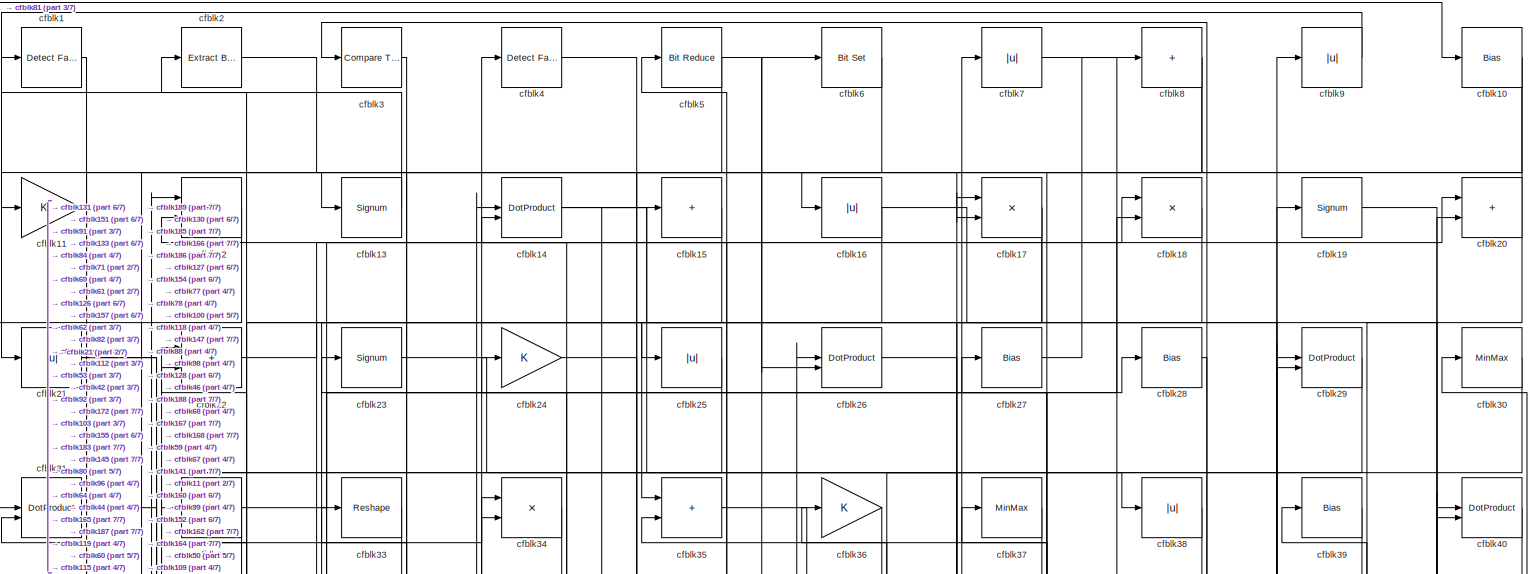
[diagram: root canvas - part 1/7, full width, top band]
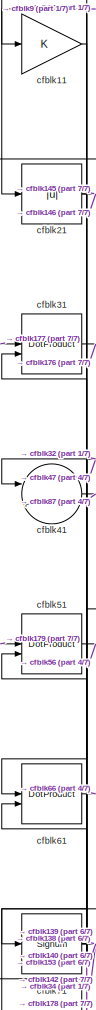
[diagram: root canvas - part 2/7, top left region]
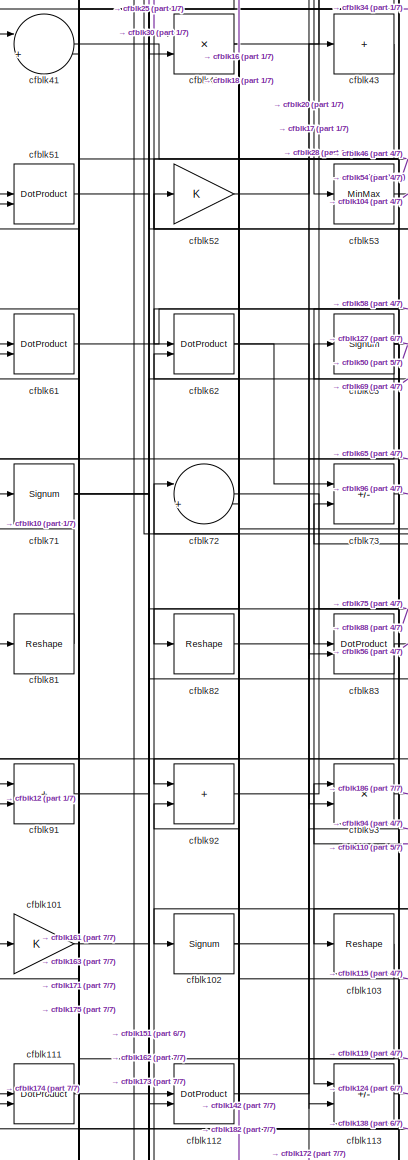
[diagram: root canvas - part 3/7, middle left region]
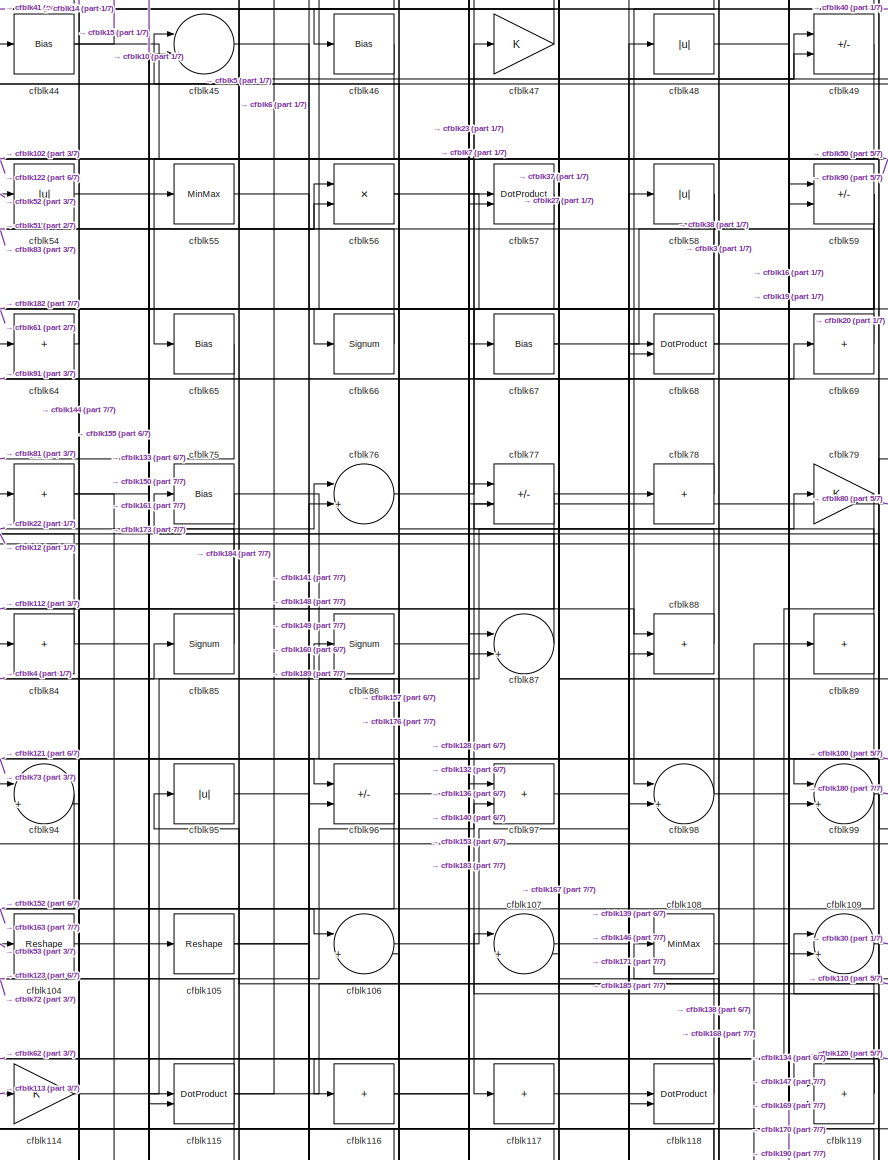
[diagram: root canvas - part 4/7, central region]
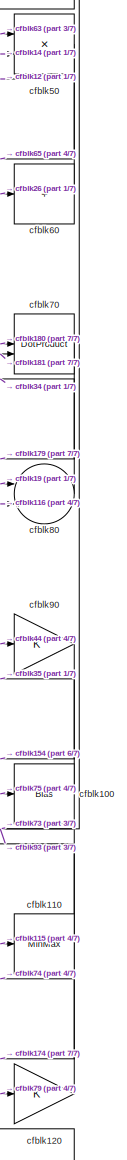
[diagram: root canvas - part 5/7, middle right region]
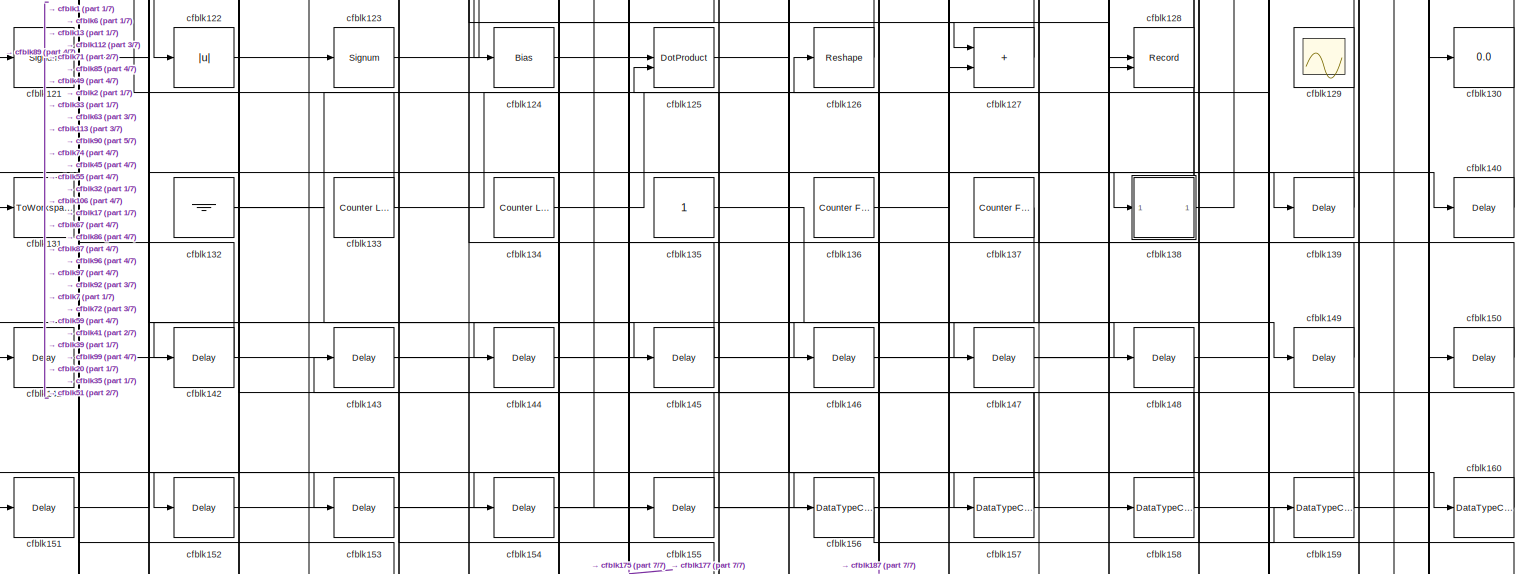
[diagram: root canvas - part 6/7, full width, bottom band]
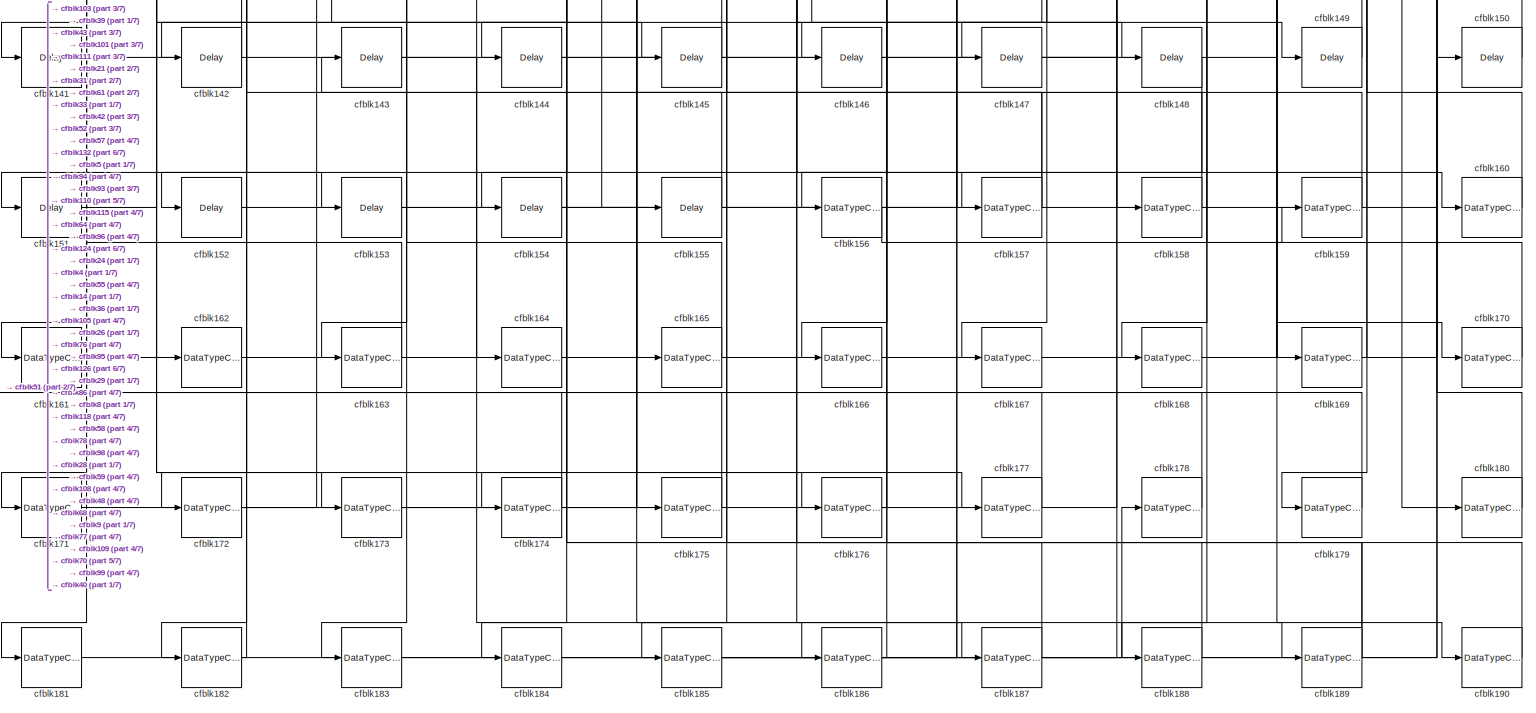
[diagram: root canvas - part 7/7, full width, bottom band]
MODEL slx_25b39e8c205a
KIND model
CONFIG AbsTol = auto
CONFIG EnableMultiTasking = off
CONFIG FixedStep = auto
CONFIG MaxStep = auto
CONFIG MinStep = auto
CONFIG RelTol = 1e-3
CONFIG SampleTimeConstraint = Unconstrained
CONFIG SolverName = VariableStepAuto
CONFIG StartTime = 0.0
CONFIG StopTime = 10.0
BLOCK [Reference] cfblk1  REF=hdlsllib/Logic and Bit
Operations/Detect Fall
Nonpositive
  SourceBlock = hdlsllib/Logic and Bit\nOperations/Detect Fall\nNonpositive
  SourceType = Detect Fall Nonpositive
BLOCK [Bias] cfblk10
  Bias = 0.0
  SaturateOnIntegerOverflow = off
BLOCK [Bias] cfblk100
  Bias = 0.0
  SaturateOnIntegerOverflow = off
BLOCK [Gain] cfblk101
BLOCK [Signum] cfblk102
BLOCK [Reshape] cfblk103
BLOCK [Reshape] cfblk104
BLOCK [Reshape] cfblk105
BLOCK [Sum] cfblk106
  Inputs = |++
BLOCK [Sum] cfblk107
  Inputs = |++
BLOCK [MinMax] cfblk108
BLOCK [Sum] cfblk109
  Inputs = |++
BLOCK [Gain] cfblk11
BLOCK [MinMax] cfblk110
BLOCK [DotProduct] cfblk111
  OutDataTypeStr = Inherit: Inherit via internal rule
BLOCK [DotProduct] cfblk112
  OutDataTypeStr = Inherit: Inherit via internal rule
BLOCK [Sum] cfblk113
  IconShape = rectangular
  Inputs = +-
BLOCK [Gain] cfblk114
BLOCK [DotProduct] cfblk115
  OutDataTypeStr = Inherit: Inherit via internal rule
BLOCK [Sum] cfblk116
  IconShape = rectangular
  Inputs = +
BLOCK [Sum] cfblk117
  IconShape = rectangular
  Inputs = +
BLOCK [DotProduct] cfblk118
  OutDataTypeStr = Inherit: Inherit via internal rule
BLOCK [Sum] cfblk119
  IconShape = rectangular
BLOCK [Sum] cfblk12
  IconShape = rectangular
  Inputs = +-
BLOCK [Gain] cfblk120
BLOCK [Signum] cfblk121
BLOCK [Abs] cfblk122
  SaturateOnIntegerOverflow = off
BLOCK [Signum] cfblk123
BLOCK [Bias] cfblk124
  Bias = 0.0
  SaturateOnIntegerOverflow = off
BLOCK [DotProduct] cfblk125
  OutDataTypeStr = Inherit: Inherit via internal rule
BLOCK [Reshape] cfblk126
BLOCK [Sum] cfblk127
  IconShape = rectangular
BLOCK [Record] cfblk128
  CompatibilityTag = XY
  FileSettingsInternal = {"entries":[{"content":{"excelSettings":{"content":{},"type":"Streamout.ExcelSettings"}},"type":"Streamout.FileSettingStorage","uuid":""}],"packageUris":["http:\/\/schema.mathworks.com\/mf0\/streamout_blocks\/R2020a"],"version":"1.0"}
  Layout = [1 1]
  SignalsInternal = {"entries":[{"content":{"signals":[{"content":{"blockPath":[],"dimensions":[1],"domain":"","lineColor":"#a2142f","plots":[1],"port":1,"signalID":6186,"signalName":"XY Graph:1"},"type":"RecordBlkView.Signal","uuid":""},{"content":{"blockPath":[],"dimensions":[1],"domain":"","lineColor":"#139fff","plots":[1],"port":2,"signalID":6189,"signalName":"XY Graph:2"},"type":"RecordBlkView.Signal","uuid":""}...<+146ch>
  VisualizationBindings = {"xyplotplugin":{"info":[{"series":[{"bindingParametersList":[{"parameter":"X-Axis","signalID":6186,"signalName":"XY Graph:1"},{"parameter":"Y-Axis","signalID":6189,"signalName":"XY Graph:2"}],"seriesID":36534}],"subplotID":1}]}}
  st = -1
BLOCK [Scope] cfblk129
  Floating = on
  NumInputPorts = 1
  ScopeSpecificationString = Simulink.scopes.TimeScopeBlockCfg('CurrentConfiguration', extmgr.ConfigurationSet(extmgr.Configuration('Core','General UI',true,'FigureColor',[0.156862745098039 0.156862745098039 0.156862745098039]),extmgr.Configuration('Core','Source UI',true),extmgr.Configuration('Sources','WiredSimulink',true,'DataLoggingVariableName','ScopeData1','DataLoggingSaveFormat','StructureWithTime','DataLoggingLimitDat...<+2713ch>
BLOCK [Signum] cfblk13
BLOCK [Display] cfblk130
  Decimation = 1
BLOCK [ToWorkspace] cfblk131
  MaxDataPoints = inf
  SampleTime = -1
  SaveFormat = Timeseries
  VariableName = simout
BLOCK [Ground] cfblk132
BLOCK [Reference] cfblk133  REF=hdlsllib/Sources/Counter
Limited
  SourceBlock = hdlsllib/Sources/Counter\nLimited
  SourceType = Counter Limited
BLOCK [Reference] cfblk134  REF=hdlsllib/Sources/Counter
Limited
  SourceBlock = hdlsllib/Sources/Counter\nLimited
  SourceType = Counter Limited
BLOCK [Constant] cfblk135
  SampleTime = -1
BLOCK [Reference] cfblk136  REF=hdlsllib/Sources/Counter
Free-Running
  SourceBlock = hdlsllib/Sources/Counter\nFree-Running
  SourceType = Counter Free-Running
BLOCK [Reference] cfblk137  REF=hdlsllib/Sources/Counter
Free-Running
  SourceBlock = hdlsllib/Sources/Counter\nFree-Running
  SourceType = Counter Free-Running
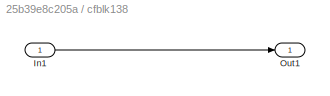
BLOCK [SubSystem] cfblk138
  LibrarySourceBlock = hdlsllib/Ports &\nSubsystems/Subsystem
BLOCK [Inport] cfblk138/In1
BLOCK [Outport] cfblk138/Out1
BLOCK [Delay] cfblk139
  InputPortMap = u0
  SampleTime = 1
BLOCK [DotProduct] cfblk14
  OutDataTypeStr = Inherit: Inherit via internal rule
BLOCK [Delay] cfblk140
  InputPortMap = u0
  SampleTime = 1
BLOCK [Delay] cfblk141
  InputPortMap = u0
  SampleTime = 1
BLOCK [Delay] cfblk142
  InputPortMap = u0
  SampleTime = 1
BLOCK [Delay] cfblk143
  InputPortMap = u0
  SampleTime = 1
BLOCK [Delay] cfblk144
  InputPortMap = u0
  SampleTime = 1
BLOCK [Delay] cfblk145
  InputPortMap = u0
  SampleTime = 1
BLOCK [Delay] cfblk146
  InputPortMap = u0
  SampleTime = 1
BLOCK [Delay] cfblk147
  InputPortMap = u0
  SampleTime = 1
BLOCK [Delay] cfblk148
  InputPortMap = u0
  SampleTime = 1
BLOCK [Delay] cfblk149
  InputPortMap = u0
  SampleTime = 1
BLOCK [Sum] cfblk15
  IconShape = rectangular
  Inputs = +
BLOCK [Delay] cfblk150
  InputPortMap = u0
  SampleTime = 1
BLOCK [Delay] cfblk151
  InputPortMap = u0
  SampleTime = 1
BLOCK [Delay] cfblk152
  InputPortMap = u0
  SampleTime = 1
BLOCK [Delay] cfblk153
  InputPortMap = u0
  SampleTime = 1
BLOCK [Delay] cfblk154
  InputPortMap = u0
  SampleTime = 1
BLOCK [Delay] cfblk155
  InputPortMap = u0
  SampleTime = 1
BLOCK [DataTypeConversion] cfblk156
  OutDataTypeStr = uint8
  RndMeth = Floor
  SaturateOnIntegerOverflow = off
BLOCK [DataTypeConversion] cfblk157
  RndMeth = Floor
  SaturateOnIntegerOverflow = off
BLOCK [DataTypeConversion] cfblk158
  OutDataTypeStr = uint8
  RndMeth = Floor
  SaturateOnIntegerOverflow = off
BLOCK [DataTypeConversion] cfblk159
  OutDataTypeStr = uint8
  RndMeth = Floor
  SaturateOnIntegerOverflow = off
BLOCK [Abs] cfblk16
  SaturateOnIntegerOverflow = off
BLOCK [DataTypeConversion] cfblk160
  OutDataTypeStr = uint8
  RndMeth = Floor
  SaturateOnIntegerOverflow = off
BLOCK [DataTypeConversion] cfblk161
  OutDataTypeStr = uint8
  RndMeth = Floor
  SaturateOnIntegerOverflow = off
BLOCK [DataTypeConversion] cfblk162
  OutDataTypeStr = uint8
  RndMeth = Floor
  SaturateOnIntegerOverflow = off
BLOCK [DataTypeConversion] cfblk163
  OutDataTypeStr = uint8
  RndMeth = Floor
  SaturateOnIntegerOverflow = off
BLOCK [DataTypeConversion] cfblk164
  OutDataTypeStr = uint8
  RndMeth = Floor
  SaturateOnIntegerOverflow = off
BLOCK [DataTypeConversion] cfblk165
  OutDataTypeStr = uint8
  RndMeth = Floor
  SaturateOnIntegerOverflow = off
BLOCK [DataTypeConversion] cfblk166
  OutDataTypeStr = uint8
  RndMeth = Floor
  SaturateOnIntegerOverflow = off
BLOCK [DataTypeConversion] cfblk167
  OutDataTypeStr = uint8
  RndMeth = Floor
  SaturateOnIntegerOverflow = off
BLOCK [DataTypeConversion] cfblk168
  OutDataTypeStr = uint8
  RndMeth = Floor
  SaturateOnIntegerOverflow = off
BLOCK [DataTypeConversion] cfblk169
  OutDataTypeStr = uint8
  RndMeth = Floor
  SaturateOnIntegerOverflow = off
BLOCK [Product] cfblk17
  Inputs = */
  RndMeth = Zero
  SaturateOnIntegerOverflow = on
BLOCK [DataTypeConversion] cfblk170
  OutDataTypeStr = uint8
  RndMeth = Floor
  SaturateOnIntegerOverflow = off
BLOCK [DataTypeConversion] cfblk171
  OutDataTypeStr = uint8
  RndMeth = Floor
  SaturateOnIntegerOverflow = off
BLOCK [DataTypeConversion] cfblk172
  OutDataTypeStr = uint8
  RndMeth = Floor
  SaturateOnIntegerOverflow = off
BLOCK [DataTypeConversion] cfblk173
  OutDataTypeStr = uint8
  RndMeth = Floor
  SaturateOnIntegerOverflow = off
BLOCK [DataTypeConversion] cfblk174
  OutDataTypeStr = uint8
  RndMeth = Floor
  SaturateOnIntegerOverflow = off
BLOCK [DataTypeConversion] cfblk175
  OutDataTypeStr = uint8
  RndMeth = Floor
  SaturateOnIntegerOverflow = off
BLOCK [DataTypeConversion] cfblk176
  OutDataTypeStr = uint8
  RndMeth = Floor
  SaturateOnIntegerOverflow = off
BLOCK [DataTypeConversion] cfblk177
  OutDataTypeStr = uint8
  RndMeth = Floor
  SaturateOnIntegerOverflow = off
BLOCK [DataTypeConversion] cfblk178
  OutDataTypeStr = uint8
  RndMeth = Floor
  SaturateOnIntegerOverflow = off
BLOCK [DataTypeConversion] cfblk179
  OutDataTypeStr = uint8
  RndMeth = Floor
  SaturateOnIntegerOverflow = off
BLOCK [Product] cfblk18
  Inputs = */
  RndMeth = Zero
  SaturateOnIntegerOverflow = on
BLOCK [DataTypeConversion] cfblk180
  OutDataTypeStr = uint8
  RndMeth = Floor
  SaturateOnIntegerOverflow = off
BLOCK [DataTypeConversion] cfblk181
  OutDataTypeStr = uint8
  RndMeth = Floor
  SaturateOnIntegerOverflow = off
BLOCK [DataTypeConversion] cfblk182
  OutDataTypeStr = uint8
  RndMeth = Floor
  SaturateOnIntegerOverflow = off
BLOCK [DataTypeConversion] cfblk183
  OutDataTypeStr = uint8
  RndMeth = Floor
  SaturateOnIntegerOverflow = off
BLOCK [DataTypeConversion] cfblk184
  OutDataTypeStr = uint8
  RndMeth = Floor
  SaturateOnIntegerOverflow = off
BLOCK [DataTypeConversion] cfblk185
  RndMeth = Floor
  SaturateOnIntegerOverflow = off
BLOCK [DataTypeConversion] cfblk186
  OutDataTypeStr = uint8
  RndMeth = Floor
  SaturateOnIntegerOverflow = off
BLOCK [DataTypeConversion] cfblk187
  RndMeth = Floor
  SaturateOnIntegerOverflow = off
BLOCK [DataTypeConversion] cfblk188
  OutDataTypeStr = uint8
  RndMeth = Floor
  SaturateOnIntegerOverflow = off
BLOCK [DataTypeConversion] cfblk189
  RndMeth = Floor
  SaturateOnIntegerOverflow = off
BLOCK [Signum] cfblk19
BLOCK [DataTypeConversion] cfblk190
  OutDataTypeStr = uint8
  RndMeth = Floor
  SaturateOnIntegerOverflow = off
BLOCK [Reference] cfblk2  REF=simulink/Logic and Bit
Operations/Extract Bits
  LibrarySourceBlock = hdlsllib/Logic and Bit\nOperations/Extract Bits
  SourceBlock = simulink/Logic and Bit\nOperations/Extract Bits
  SourceType = Extract Bits
BLOCK [Sum] cfblk20
  IconShape = rectangular
BLOCK [Abs] cfblk21
  SaturateOnIntegerOverflow = off
BLOCK [Sum] cfblk22
  IconShape = rectangular
BLOCK [Signum] cfblk23
BLOCK [Gain] cfblk24
BLOCK [Abs] cfblk25
  SaturateOnIntegerOverflow = off
BLOCK [DotProduct] cfblk26
  OutDataTypeStr = Inherit: Inherit via internal rule
BLOCK [Bias] cfblk27
  Bias = 0.0
  SaturateOnIntegerOverflow = off
BLOCK [Bias] cfblk28
  Bias = 0.0
  SaturateOnIntegerOverflow = off
BLOCK [DotProduct] cfblk29
  OutDataTypeStr = Inherit: Inherit via internal rule
BLOCK [Reference] cfblk3  REF=hdlsllib/Logic and Bit
Operations/Compare
To Zero
  SourceBlock = hdlsllib/Logic and Bit\nOperations/Compare\nTo Zero
  SourceType = Compare To Zero
BLOCK [MinMax] cfblk30
BLOCK [DotProduct] cfblk31
  OutDataTypeStr = Inherit: Inherit via internal rule
BLOCK [Bias] cfblk32
  Bias = 0.0
  SaturateOnIntegerOverflow = off
BLOCK [Reshape] cfblk33
BLOCK [Product] cfblk34
  Inputs = */
  RndMeth = Zero
  SaturateOnIntegerOverflow = on
BLOCK [Sum] cfblk35
  IconShape = rectangular
BLOCK [Gain] cfblk36
BLOCK [MinMax] cfblk37
BLOCK [Abs] cfblk38
  SaturateOnIntegerOverflow = off
BLOCK [Bias] cfblk39
  Bias = 0.0
  SaturateOnIntegerOverflow = off
BLOCK [Reference] cfblk4  REF=hdlsllib/Logic and Bit
Operations/Detect Fall
Nonpositive
  SourceBlock = hdlsllib/Logic and Bit\nOperations/Detect Fall\nNonpositive
  SourceType = Detect Fall Nonpositive
BLOCK [DotProduct] cfblk40
  OutDataTypeStr = Inherit: Inherit via internal rule
BLOCK [Sum] cfblk41
  Inputs = |++
BLOCK [Product] cfblk42
  Inputs = */
  RndMeth = Zero
  SaturateOnIntegerOverflow = on
BLOCK [Sum] cfblk43
  IconShape = rectangular
  Inputs = +
BLOCK [Bias] cfblk44
  Bias = 0.0
  SaturateOnIntegerOverflow = off
BLOCK [Sum] cfblk45
  Inputs = |++
BLOCK [Bias] cfblk46
  Bias = 0.0
  SaturateOnIntegerOverflow = off
BLOCK [Gain] cfblk47
BLOCK [Abs] cfblk48
  SaturateOnIntegerOverflow = off
BLOCK [Sum] cfblk49
  IconShape = rectangular
  Inputs = +-
BLOCK [Reference] cfblk5  REF=hdlsllib/Logic and Bit
Operations/Bit Reduce
  SourceBlock = hdlsllib/Logic and Bit\nOperations/Bit Reduce
  SourceType = Bit Reduce
BLOCK [Product] cfblk50
  Inputs = */
  RndMeth = Zero
  SaturateOnIntegerOverflow = on
BLOCK [DotProduct] cfblk51
  OutDataTypeStr = Inherit: Inherit via internal rule
BLOCK [Gain] cfblk52
BLOCK [MinMax] cfblk53
BLOCK [Abs] cfblk54
  SaturateOnIntegerOverflow = off
BLOCK [MinMax] cfblk55
BLOCK [Product] cfblk56
  Inputs = */
  RndMeth = Zero
  SaturateOnIntegerOverflow = on
BLOCK [DotProduct] cfblk57
  OutDataTypeStr = Inherit: Inherit via internal rule
BLOCK [Abs] cfblk58
  SaturateOnIntegerOverflow = off
BLOCK [Sum] cfblk59
  IconShape = rectangular
  Inputs = +-
BLOCK [Reference] cfblk6  REF=simulink/Logic and Bit
Operations/Bit Set
  LibrarySourceBlock = hdlsllib/Logic and Bit\nOperations/Bit Set
  SourceBlock = simulink/Logic and Bit\nOperations/Bit Set
  SourceType = Bit Set
BLOCK [Sum] cfblk60
  IconShape = rectangular
  Inputs = +
BLOCK [DotProduct] cfblk61
  OutDataTypeStr = Inherit: Inherit via internal rule
BLOCK [DotProduct] cfblk62
  OutDataTypeStr = Inherit: Inherit via internal rule
BLOCK [Signum] cfblk63
BLOCK [Sum] cfblk64
  IconShape = rectangular
  Inputs = +
BLOCK [Bias] cfblk65
  Bias = 0.0
  SaturateOnIntegerOverflow = off
BLOCK [Signum] cfblk66
BLOCK [Bias] cfblk67
  Bias = 0.0
  SaturateOnIntegerOverflow = off
BLOCK [DotProduct] cfblk68
  OutDataTypeStr = Inherit: Inherit via internal rule
BLOCK [Sum] cfblk69
  IconShape = rectangular
  Inputs = +
BLOCK [Abs] cfblk7
  SaturateOnIntegerOverflow = off
BLOCK [DotProduct] cfblk70
  OutDataTypeStr = Inherit: Inherit via internal rule
BLOCK [Signum] cfblk71
BLOCK [Sum] cfblk72
  Inputs = |++
BLOCK [Sum] cfblk73
  IconShape = rectangular
  Inputs = +-
BLOCK [Sum] cfblk74
  IconShape = rectangular
  Inputs = +
BLOCK [Bias] cfblk75
  Bias = 0.0
  SaturateOnIntegerOverflow = off
BLOCK [Sum] cfblk76
  Inputs = |++
BLOCK [Sum] cfblk77
  IconShape = rectangular
  Inputs = +-
BLOCK [Sum] cfblk78
  IconShape = rectangular
  Inputs = +
BLOCK [Gain] cfblk79
BLOCK [Sum] cfblk8
  IconShape = rectangular
  Inputs = +
BLOCK [Sum] cfblk80
  Inputs = |++
BLOCK [Reshape] cfblk81
BLOCK [Reshape] cfblk82
BLOCK [DotProduct] cfblk83
  OutDataTypeStr = Inherit: Inherit via internal rule
BLOCK [Sum] cfblk84
  IconShape = rectangular
  Inputs = +
BLOCK [Signum] cfblk85
BLOCK [Signum] cfblk86
BLOCK [Sum] cfblk87
  Inputs = |++
BLOCK [Sum] cfblk88
  IconShape = rectangular
BLOCK [Sum] cfblk89
  IconShape = rectangular
  Inputs = +
BLOCK [Abs] cfblk9
  SaturateOnIntegerOverflow = off
BLOCK [Gain] cfblk90
BLOCK [Sum] cfblk91
  IconShape = rectangular
BLOCK [Sum] cfblk92
  IconShape = rectangular
BLOCK [Product] cfblk93
  Inputs = */
  RndMeth = Zero
  SaturateOnIntegerOverflow = on
BLOCK [Sum] cfblk94
  Inputs = |++
BLOCK [Abs] cfblk95
  SaturateOnIntegerOverflow = off
BLOCK [Sum] cfblk96
  IconShape = rectangular
  Inputs = +-
BLOCK [Sum] cfblk97
  IconShape = rectangular
BLOCK [Sum] cfblk98
  Inputs = |++
BLOCK [Sum] cfblk99
  Inputs = |++
LINE cfblk100:1 -> cfblk35:2
LINE cfblk101:1 -> cfblk162:1
NET cfblk102:1 -> cfblk62:2, cfblk94:1
LINE cfblk103:1 -> cfblk161:1
LINE cfblk104:1 -> cfblk76:1
NET cfblk105:1 -> cfblk148:1, cfblk149:1
LINE cfblk106:1 -> cfblk49:2
LINE cfblk107:1 -> cfblk68:1
LINE cfblk108:1 -> cfblk169:1
LINE cfblk109:1 -> cfblk30:1
NET cfblk10:1 -> cfblk115:2, cfblk91:1
NET cfblk110:1 -> cfblk174:1, cfblk73:2, cfblk93:1
LINE cfblk111:1 -> cfblk173:1
LINE cfblk112:1 -> cfblk20:1
LINE cfblk113:1 -> cfblk124:1
LINE cfblk114:1 -> cfblk79:1
NET cfblk115:1 -> cfblk110:1, cfblk184:1, cfblk6:1, cfblk72:1
NET cfblk116:1 -> cfblk49:1, cfblk80:2
LINE cfblk117:1 -> cfblk88:2
LINE cfblk118:1 -> cfblk23:1
NET cfblk119:1 -> cfblk107:1, cfblk5:1
LINE cfblk11:1 -> cfblk71:1
LINE cfblk120:1 -> cfblk74:1
LINE cfblk121:1 -> cfblk85:1
LINE cfblk122:1 -> cfblk123:1
LINE cfblk123:1 -> cfblk97:2
LINE cfblk124:1 -> cfblk177:1
LINE cfblk125:1 -> cfblk157:1
LINE cfblk126:1 -> cfblk32:1
LINE cfblk127:1 -> cfblk92:2
LINE cfblk12:1 -> cfblk91:2
NET cfblk132:1 -> cfblk175:1, cfblk97:1
NET cfblk133:1 -> cfblk13:1, cfblk45:2
LINE cfblk134:1 -> cfblk59:1
LINE cfblk135:1 -> cfblk158:1
LINE cfblk136:1 -> cfblk67:1
LINE cfblk137:1 -> cfblk156:1
LINE cfblk138/In1:1 -> cfblk138/Out1:1
NET cfblk138:1 -> cfblk63:1, cfblk72:2, cfblk89:1
LINE cfblk139:1 -> cfblk41:2
LINE cfblk13:1 -> cfblk1:1
LINE cfblk140:1 -> cfblk51:2
LINE cfblk141:1 -> cfblk76:2
LINE cfblk142:1 -> cfblk61:2
LINE cfblk143:1 -> cfblk164:1
LINE cfblk144:1 -> cfblk118:2
LINE cfblk145:1 -> cfblk14:1
LINE cfblk146:1 -> cfblk98:2
LINE cfblk147:1 -> cfblk99:2
LINE cfblk148:1 -> cfblk181:1
LINE cfblk149:1 -> cfblk77:2
NET cfblk14:1 -> cfblk38:1, cfblk50:2
LINE cfblk150:1 -> cfblk115:1
LINE cfblk151:1 -> cfblk112:1
LINE cfblk152:1 -> cfblk20:2
LINE cfblk153:1 -> cfblk87:1
LINE cfblk154:1 -> cfblk17:1
LINE cfblk155:1 -> cfblk33:1
LINE cfblk156:1 -> cfblk159:1
NET cfblk157:1 -> cfblk106:2, cfblk2:1
LINE cfblk158:1 -> cfblk125:1
LINE cfblk159:1 -> cfblk125:2
LINE cfblk15:1 -> cfblk35:1
LINE cfblk160:1 -> cfblk39:1
LINE cfblk161:1 -> cfblk55:1
LINE cfblk162:1 -> cfblk40:2
LINE cfblk163:1 -> cfblk101:1
LINE cfblk164:1 -> cfblk40:1
LINE cfblk165:1 -> cfblk143:1
LINE cfblk166:1 -> cfblk9:1
LINE cfblk167:1 -> cfblk29:1
LINE cfblk168:1 -> cfblk29:2
LINE cfblk169:1 -> cfblk109:1
NET cfblk16:1 -> cfblk59:2, cfblk62:1
LINE cfblk170:1 -> cfblk108:1
LINE cfblk171:1 -> cfblk58:1
LINE cfblk172:1 -> cfblk43:1
LINE cfblk173:1 -> cfblk105:1
LINE cfblk174:1 -> cfblk111:1
LINE cfblk175:1 -> cfblk111:2
LINE cfblk176:1 -> cfblk86:1
LINE cfblk177:1 -> cfblk31:1
LINE cfblk178:1 -> cfblk31:2
LINE cfblk179:1 -> cfblk51:1
NET cfblk17:1 -> cfblk127:2, cfblk53:1
LINE cfblk180:1 -> cfblk70:1
LINE cfblk181:1 -> cfblk70:2
LINE cfblk182:1 -> cfblk52:1
LINE cfblk183:1 -> cfblk57:1
LINE cfblk184:1 -> cfblk57:2
NET cfblk185:1 -> cfblk150:1, cfblk78:1
LINE cfblk186:1 -> cfblk36:1
NET cfblk187:1 -> cfblk126:1, cfblk178:1
LINE cfblk188:1 -> cfblk24:1
NET cfblk189:1 -> cfblk26:1, cfblk64:1
LINE cfblk18:1 -> cfblk82:1
LINE cfblk190:1 -> cfblk95:1
LINE cfblk19:1 -> cfblk80:1
LINE cfblk1:1 -> cfblk131:1
NET cfblk20:1 -> cfblk11:1, cfblk99:1
NET cfblk21:1 -> cfblk145:1, cfblk146:1
LINE cfblk22:1 -> cfblk25:1
LINE cfblk23:1 -> cfblk77:1
LINE cfblk24:1 -> cfblk187:1
LINE cfblk25:1 -> cfblk42:2
LINE cfblk26:1 -> cfblk60:1
LINE cfblk27:1 -> cfblk8:1
LINE cfblk28:1 -> cfblk188:1
LINE cfblk29:1 -> cfblk166:1
LINE cfblk2:1 -> cfblk17:2
LINE cfblk30:1 -> cfblk42:1
LINE cfblk31:1 -> cfblk176:1
NET cfblk32:1 -> cfblk18:2, cfblk61:1
LINE cfblk33:1 -> cfblk172:1
LINE cfblk34:1 -> cfblk92:1
LINE cfblk35:1 -> cfblk130:1
LINE cfblk36:1 -> cfblk185:1
LINE cfblk37:1 -> cfblk84:1
LINE cfblk38:1 -> cfblk46:1
LINE cfblk39:1 -> cfblk141:1
LINE cfblk3:1 -> cfblk103:1
LINE cfblk40:1 -> cfblk98:1
LINE cfblk41:1 -> cfblk87:2
NET cfblk42:1 -> cfblk142:1, cfblk18:1
LINE cfblk43:1 -> cfblk171:1
NET cfblk44:1 -> cfblk15:1, cfblk90:1
LINE cfblk45:1 -> cfblk68:2
LINE cfblk46:1 -> cfblk102:1
LINE cfblk47:1 -> cfblk41:1
LINE cfblk48:1 -> cfblk190:1
LINE cfblk49:1 -> cfblk122:1
LINE cfblk4:1 -> cfblk165:1
LINE cfblk50:1 -> cfblk65:1
LINE cfblk51:1 -> cfblk56:2
LINE cfblk52:1 -> cfblk54:1
LINE cfblk53:1 -> cfblk104:1
LINE cfblk54:1 -> cfblk96:2
LINE cfblk55:1 -> cfblk160:1
NET cfblk56:1 -> cfblk116:1, cfblk118:1
LINE cfblk57:1 -> cfblk182:1
NET cfblk58:1 -> cfblk113:1, cfblk114:1
NET cfblk59:1 -> cfblk117:1, cfblk167:1, cfblk168:1
NET cfblk5:1 -> cfblk183:1, cfblk26:2
LINE cfblk60:1 -> cfblk12:2
LINE cfblk61:1 -> cfblk66:1
NET cfblk62:1 -> cfblk119:1, cfblk73:1
NET cfblk63:1 -> cfblk127:1, cfblk50:1, cfblk83:1, cfblk83:2
LINE cfblk64:1 -> cfblk14:2
LINE cfblk65:1 -> cfblk81:1
LINE cfblk66:1 -> cfblk45:1
NET cfblk67:1 -> cfblk107:2, cfblk19:1
NET cfblk68:1 -> cfblk170:1, cfblk3:1
LINE cfblk69:1 -> cfblk22:2
LINE cfblk6:1 -> cfblk151:1
LINE cfblk70:1 -> cfblk179:1
NET cfblk71:1 -> cfblk138:1, cfblk153:1, cfblk34:2
LINE cfblk72:1 -> cfblk88:1
LINE cfblk73:1 -> cfblk96:1
NET cfblk74:1 -> cfblk106:1, cfblk155:1
NET cfblk75:1 -> cfblk100:1, cfblk112:2
LINE cfblk76:1 -> cfblk47:1
NET cfblk77:1 -> cfblk48:1, cfblk94:2
LINE cfblk78:1 -> cfblk7:1
LINE cfblk79:1 -> cfblk120:1
LINE cfblk7:1 -> cfblk128:1
LINE cfblk80:1 -> cfblk34:1
LINE cfblk81:1 -> cfblk10:1
LINE cfblk82:1 -> cfblk113:2
NET cfblk83:1 -> cfblk56:1, cfblk93:2
NET cfblk84:1 -> cfblk119:2, cfblk12:1
LINE cfblk85:1 -> cfblk22:1
LINE cfblk86:1 -> cfblk140:1
LINE cfblk87:1 -> cfblk75:1
LINE cfblk88:1 -> cfblk37:1
NET cfblk89:1 -> cfblk121:1, cfblk44:1
NET cfblk8:1 -> cfblk147:1, cfblk16:1
LINE cfblk90:1 -> cfblk154:1
LINE cfblk91:1 -> cfblk69:1
LINE cfblk92:1 -> cfblk28:1
LINE cfblk93:1 -> cfblk186:1
LINE cfblk94:1 -> cfblk163:1
LINE cfblk95:1 -> cfblk189:1
NET cfblk96:1 -> cfblk128:2, cfblk144:1, cfblk4:1
LINE cfblk97:1 -> cfblk139:1
NET cfblk98:1 -> cfblk109:2, cfblk27:1
NET cfblk99:1 -> cfblk152:1, cfblk180:1
LINE cfblk9:1 -> cfblk21:1
note: NET lines group one-source signal fan-out (src -> all destinations, sorted); 1:1 wires keep LINE
